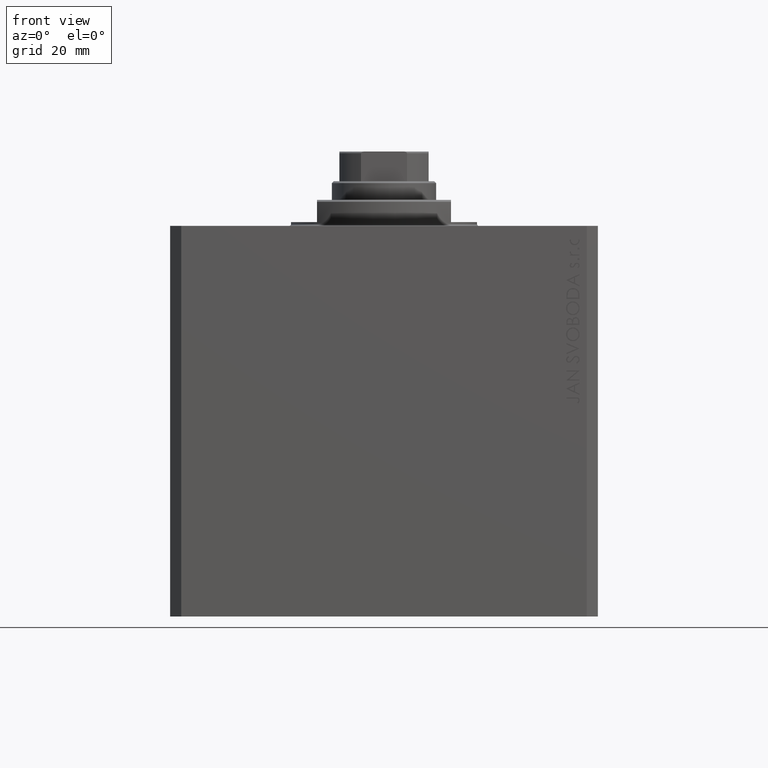
[diagram: clean part render]
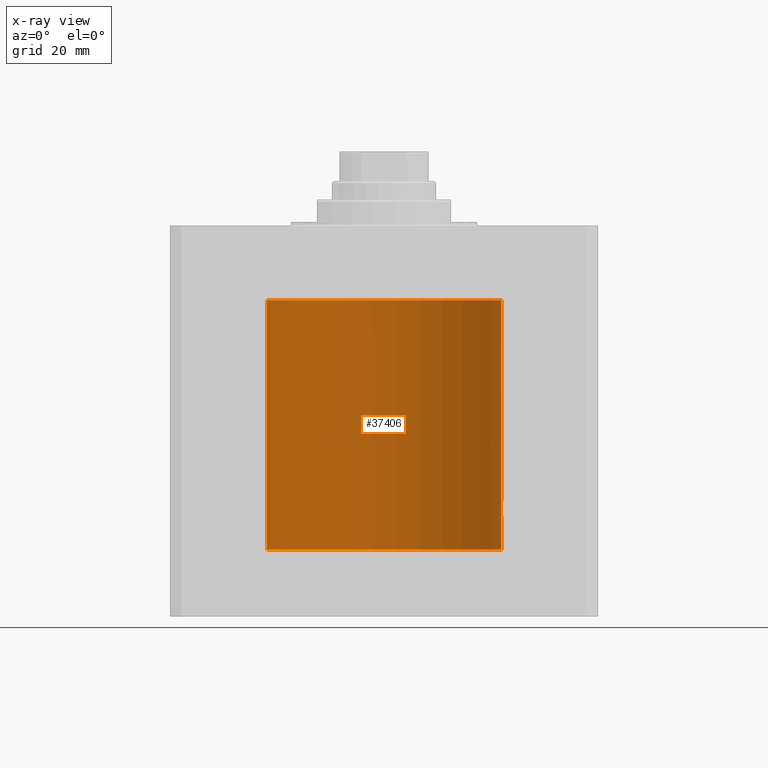
[diagram: x-ray — body ghosted, one internal face saturated and labeled with its STEP entity id]
A machine part, front view, then the same camera in x-ray: the body is ghosted and one INTERNAL B-rep face — a face not visible from any outside direction — is saturated and labeled: STEP entity #37406.
In plain terms, the highlighted cylindrical surface (partial cylindrical patch) has radius 31.5 mm, axis along (0, 0, 1).
Its self-contained STEP definition (entity closure, byte-faithful):
#517 = CARTESIAN_POINT ( 'NONE',  ( 0.000000000000000000, 0.000000000000000000, -87.09999999999999432 ) ) ;
#525 = CARTESIAN_POINT ( 'NONE',  ( 31.50000000000000000, -8.369814204394935255E-24, -74.00000000000000000 ) ) ;
#640 = CARTESIAN_POINT ( 'NONE',  ( -31.43990583976198039, 1.947383405442052906, -28.47504952007440693 ) ) ;
#749 = CARTESIAN_POINT ( 'NONE',  ( 31.43728213781475489, 1.986944500966173477, -75.73703800172732770 ) ) ;
#756 = ORIENTED_EDGE ( 'NONE', *, *, #39774, .T. ) ;
#1211 = LINE ( 'NONE', #26984, #30403 ) ;
#1736 = VERTEX_POINT ( 'NONE', #43524 ) ;
#2134 = CARTESIAN_POINT ( 'NONE',  ( 31.48773468680478160, 0.8872681233992109062, -77.79720623967027393 ) ) ;
#2368 = DIRECTION ( 'NONE',  ( 0.000000000000000000, 0.000000000000000000, 1.000000000000000000 ) ) ;
#2467 = CARTESIAN_POINT ( 'NONE',  ( 0.000000000000000000, 0.000000000000000000, -87.09999999999999432 ) ) ;
#3856 = CARTESIAN_POINT ( 'NONE',  ( 31.46404119587053927, 1.507594711990248637, -74.67917285243763104 ) ) ;
#3883 = CARTESIAN_POINT ( 'NONE',  ( -31.50000000000000000, 3.857637417314162689E-15, -20.00000000000000355 ) ) ;
#3993 = CARTESIAN_POINT ( 'NONE',  ( -31.50000000000000711, 0.1321804137546035152, -27.00000000000000711 ) ) ;
#4093 = CYLINDRICAL_SURFACE ( 'NONE', #28417, 31.50000000000000000 ) ;
#4199 = EDGE_CURVE ( 'NONE', #42066, #22732, #1211, .T. ) ;
#4335 = CARTESIAN_POINT ( 'NONE',  ( 31.48420706794360058, 1.003217712170301423, -74.26491493284291323 ) ) ;
#4559 = CARTESIAN_POINT ( 'NONE',  ( 31.43644381923627051, 2.000000000000389910, -76.00000000000000000 ) ) ;
#4910 = CARTESIAN_POINT ( 'NONE',  ( -31.44868630248347330, 1.797956860106296073, -29.88573445525094385 ) ) ;
#5390 = EDGE_CURVE ( 'NONE', #30366, #1736, #39332, .T. ) ;
#6045 = DIRECTION ( 'NONE',  ( 0.000000000000000000, 0.000000000000000000, 1.000000000000000000 ) ) ;
#6738 = ORIENTED_EDGE ( 'NONE', *, *, #5390, .T. ) ;
#7091 = CARTESIAN_POINT ( 'NONE',  ( -31.48773989768472603, 0.8870801819049330961, -27.20270307449468916 ) ) ;
#7148 = DIRECTION ( 'NONE',  ( 1.000000000000000000, 0.000000000000000000, 0.000000000000000000 ) ) ;
#7220 = DIRECTION ( 'NONE',  ( -0.000000000000000000, -0.000000000000000000, 1.000000000000000000 ) ) ;
#7996 = VERTEX_POINT ( 'NONE', #43059 ) ;
#8489 = CARTESIAN_POINT ( 'NONE',  ( -31.49364602877929897, 0.6441674297270015837, -30.89795957697708317 ) ) ;
#8541 = AXIS2_PLACEMENT_3D ( 'NONE', #2467, #6045, #19915 ) ;
#8727 = CARTESIAN_POINT ( 'NONE',  ( -31.43644085734510796, 2.000046555665927261, -29.12976806868835666 ) ) ;
#9536 = CARTESIAN_POINT ( 'NONE',  ( 31.50000000000000711, 0.1322106156816646727, -78.00000000000000000 ) ) ;
#10791 = CARTESIAN_POINT ( 'NONE',  ( 31.48776132734998967, 0.8863252928784766116, -74.20232887084928564 ) ) ;
#11177 = VECTOR ( 'NONE', #7220, 1000.000000000000000 ) ;
#11394 = CARTESIAN_POINT ( 'NONE',  ( -31.48424881603013148, 1.001951351791703804, -27.26414944111796856 ) ) ;
#11497 = DIRECTION ( 'NONE',  ( -0.000000000000000000, -0.000000000000000000, 1.000000000000000000 ) ) ;
#11868 = CARTESIAN_POINT ( 'NONE',  ( -31.45224836082999431, 1.735318303535943185, -30.00282216311122951 ) ) ;
#13810 = LINE ( 'NONE', #42923, #26791 ) ;
#14984 = CARTESIAN_POINT ( 'NONE',  ( -31.49600294595510164, 0.5178263803265128473, -27.06380656104273896 ) ) ;
#15034 = VERTEX_POINT ( 'NONE', #3883 ) ;
#15444 = CARTESIAN_POINT ( 'NONE',  ( -31.43644976744935349, 1.999906504661145057, -28.73831721771797731 ) ) ;
#15476 = EDGE_CURVE ( 'NONE', #38301, #15034, #13810, .T. ) ;
#15517 = VERTEX_POINT ( 'NONE', #28603 ) ;
#15679 = CARTESIAN_POINT ( 'NONE',  ( -31.47655123270016375, 1.220027114947935809, -30.59012812369856960 ) ) ;
#16009 = DIRECTION ( 'NONE',  ( 1.000000000000000000, 0.000000000000000000, 0.000000000000000000 ) ) ;
#16279 = B_SPLINE_CURVE_WITH_KNOTS ( 'NONE', 3,
 ( #36670, #3993, #33105, #14984, #44094, #7091, #11394, #25947, #40498, #22378, #33338, #640, #15444, #8727, #41185, #30686, #47259, #4910, #11868, #26187, #23535, #23304, #15679, #40740, #19494, #8489, #26419, #34033, #44564, #37842 ),
 .UNSPECIFIED., .F., .F.,
 ( 4, 2, 2, 2, 2, 2, 2, 2, 2, 2, 2, 2, 2, 2, 4 ),
 ( 2.625213444697534148E-19, 0.0003909052907595647391, 0.0007818105815191293698, 0.001172715872278693892, 0.001563621163038258956, 0.002345431744557394723, 0.003127242326076530923, 0.003518147616836098807, 0.003909052907595665823, 0.004299958198355233706, 0.004690863489114801589, 0.005081768779874370340, 0.005472674070633938223, 0.005863579361393506106, 0.006254484652153074857 ),
 .UNSPECIFIED. ) ;
#18194 = CARTESIAN_POINT ( 'NONE',  ( 31.44280827872263018, 1.897980201673372669, -75.35592026268044208 ) ) ;
#18444 = LINE ( 'NONE', #28470, #11177 ) ;
#18910 = CARTESIAN_POINT ( 'NONE',  ( 31.49364883223205425, 0.6440257487116619606, -74.10199450781240671 ) ) ;
#19494 = CARTESIAN_POINT ( 'NONE',  ( -31.48775605676681266, 0.8865158617371098337, -30.79757944476694576 ) ) ;
#19626 = EDGE_CURVE ( 'NONE', #38301, #7996, #16279, .T. ) ;
#19915 = DIRECTION ( 'NONE',  ( 1.000000000000000000, 0.000000000000000000, 0.000000000000000000 ) ) ;
#20231 = EDGE_CURVE ( 'NONE', #27163, #7996, #18444, .T. ) ;
#21208 = DIRECTION ( 'NONE',  ( -0.000000000000000000, -0.000000000000000000, 1.000000000000000000 ) ) ;
#22378 = CARTESIAN_POINT ( 'NONE',  ( -31.45993541206224720, 1.598922699014384996, -27.77056366933358689 ) ) ;
#22486 = CARTESIAN_POINT ( 'NONE',  ( 31.47656038302703507, 1.219789706799893736, -74.40969215575444196 ) ) ;
#22541 = CARTESIAN_POINT ( 'NONE',  ( 31.45992223434330981, 1.599182806012581226, -77.22911007148194074 ) ) ;
#22732 = VERTEX_POINT ( 'NONE', #37570 ) ;
#22765 = CARTESIAN_POINT ( 'NONE',  ( 31.47656968928225751, 1.219587704424721197, -77.59050234014505065 ) ) ;
#23304 = CARTESIAN_POINT ( 'NONE',  ( -31.47242045906136099, 1.321166510329244925, -30.50729961746650076 ) ) ;
#23535 = CARTESIAN_POINT ( 'NONE',  ( -31.46402885784291215, 1.507852291435628045, -30.32053570646255736 ) ) ;
#23617 = B_SPLINE_CURVE_WITH_KNOTS ( 'NONE', 3,
 ( #34836, #9536, #26115, #33727, #36837, #2134, #30153, #22765, #23637, #22541, #31253, #37079, #45822, #45596 ),
 .UNSPECIFIED., .F., .F.,
 ( 4, 2, 2, 2, 2, 2, 4 ),
 ( 2.056106459202125122E-18, 0.0003909946087814195124, 0.0007819892175628369649, 0.001172983826344254146, 0.001563978435125671761, 0.002345967652688536048, 0.003127956870251400769 ),
 .UNSPECIFIED. ) ;
#23637 = CARTESIAN_POINT ( 'NONE',  ( 31.47236118406704364, 1.322499398534437987, -77.50599456990816805 ) ) ;
#24736 = ORIENTED_EDGE ( 'NONE', *, *, #42856, .T. ) ;
#24829 = EDGE_LOOP ( 'NONE', ( #39456, #37725, #31744, #42899, #756, #6738, #24736, #35395, #35966 ) ) ;
#25295 = CARTESIAN_POINT ( 'NONE',  ( 0.000000000000000000, 0.000000000000000000, -20.00000000000000355 ) ) ;
#25592 = CARTESIAN_POINT ( 'NONE',  ( 31.44869941755756315, 1.797728078038228094, -75.11380515043099138 ) ) ;
#25947 = CARTESIAN_POINT ( 'NONE',  ( -31.47657892357849718, 1.219347894895174589, -27.40931637798618326 ) ) ;
#26115 = CARTESIAN_POINT ( 'NONE',  ( 31.49916827061299074, 0.2622045237009018592, -77.98701932221887034 ) ) ;
#26187 = CARTESIAN_POINT ( 'NONE',  ( -31.45990328919314649, 1.590516142808641842, -30.21952462249807425 ) ) ;
#26419 = CARTESIAN_POINT ( 'NONE',  ( -31.49597709302052451, 0.5194777340345942962, -30.93577488239865758 ) ) ;
#26626 = VECTOR ( 'NONE', #21208, 1000.000000000000000 ) ;
#26791 = VECTOR ( 'NONE', #39811, 1000.000000000000000 ) ;
#26984 = CARTESIAN_POINT ( 'NONE',  ( 31.50000000000000000, 0.000000000000000000, -87.09999999999999432 ) ) ;
#27163 = VERTEX_POINT ( 'NONE', #36215 ) ;
#27405 = B_SPLINE_CURVE_WITH_KNOTS ( 'NONE', 3,
 ( #4559, #43968, #749, #33215, #18194, #25592, #36785, #32737, #3856, #36544, #22486, #4335, #10791, #18910, #28926, #44205, #29169, #525 ),
 .UNSPECIFIED., .F., .F.,
 ( 4, 2, 2, 2, 2, 2, 2, 2, 4 ),
 ( 0.003127956870251400769, 0.003518772842989208258, 0.003909588815727015748, 0.004300404788464823672, 0.004691220761202631595, 0.005082036733940438651, 0.005472852706678246575, 0.005863668679416053631, 0.006254484652153861554 ),
 .UNSPECIFIED. ) ;
#28417 = AXIS2_PLACEMENT_3D ( 'NONE', #517, #11497, #16009 ) ;
#28470 = CARTESIAN_POINT ( 'NONE',  ( -31.50000000000000000, 3.857637417314162689E-15, -87.09999999999999432 ) ) ;
#28603 = CARTESIAN_POINT ( 'NONE',  ( 31.43644381923627051, 2.000000000000389910, -76.00000000000000000 ) ) ;
#28926 = CARTESIAN_POINT ( 'NONE',  ( 31.49597888575898708, 0.5193621964009169645, -74.06419610029345790 ) ) ;
#29169 = CARTESIAN_POINT ( 'NONE',  ( 31.50000000000000711, 0.1305169792915977789, -73.99999999999998579 ) ) ;
#30153 = CARTESIAN_POINT ( 'NONE',  ( 31.48424227690098931, 1.002158581476553012, -77.73573328606775590 ) ) ;
#30299 = EDGE_CURVE ( 'NONE', #22732, #15517, #23617, .T. ) ;
#30366 = VERTEX_POINT ( 'NONE', #46532 ) ;
#30403 = VECTOR ( 'NONE', #41764, 1000.000000000000000 ) ;
#30686 = CARTESIAN_POINT ( 'NONE',  ( -31.44046365243112362, 1.935949445030092253, -29.51885062223535172 ) ) ;
#31253 = CARTESIAN_POINT ( 'NONE',  ( 31.45161214644909364, 1.748160858796787398, -77.00590244996604383 ) ) ;
#31403 = CIRCLE ( 'NONE', #8541, 31.50000000000000000 ) ;
#31431 = CARTESIAN_POINT ( 'NONE',  ( 31.50000000000000000, 0.000000000000000000, -87.09999999999999432 ) ) ;
#31698 = CARTESIAN_POINT ( 'NONE',  ( 31.50000000000000000, 0.000000000000000000, -87.09999999999999432 ) ) ;
#31744 = ORIENTED_EDGE ( 'NONE', *, *, #4199, .T. ) ;
#32737 = CARTESIAN_POINT ( 'NONE',  ( 31.45991621267056004, 1.590260824275570029, -74.78014573967448086 ) ) ;
#33105 = CARTESIAN_POINT ( 'NONE',  ( -31.49916865039979186, 0.2621451228717642246, -27.01297480444316079 ) ) ;
#33215 = CARTESIAN_POINT ( 'NONE',  ( 31.44047330683569186, 1.935793094480600107, -75.48057478130489528 ) ) ;
#33338 = CARTESIAN_POINT ( 'NONE',  ( -31.45162599326494757, 1.747914105633341375, -27.99368423768024527 ) ) ;
#33727 = CARTESIAN_POINT ( 'NONE',  ( 31.49600115550921231, 0.5179422407981758569, -77.93616446468720937 ) ) ;
#34033 = CARTESIAN_POINT ( 'NONE',  ( -31.49916171907896256, 0.2631371420809984762, -30.98691729972353315 ) ) ;
#34540 = EDGE_CURVE ( 'NONE', #42066, #27163, #31403, .T. ) ;
#34836 = CARTESIAN_POINT ( 'NONE',  ( 31.50000000000000000, 2.115822464172388752E-15, -78.00000000000000000 ) ) ;
#35395 = ORIENTED_EDGE ( 'NONE', *, *, #15476, .F. ) ;
#35450 = AXIS2_PLACEMENT_3D ( 'NONE', #25295, #2368, #7148 ) ;
#35966 = ORIENTED_EDGE ( 'NONE', *, *, #19626, .T. ) ;
#36215 = CARTESIAN_POINT ( 'NONE',  ( -31.50000000000000000, 3.857637417314162689E-15, -87.09999999999999432 ) ) ;
#36544 = CARTESIAN_POINT ( 'NONE',  ( 31.47243113015943550, 1.320912165297396079, -74.49247977760566641 ) ) ;
#36670 = CARTESIAN_POINT ( 'NONE',  ( -31.50000000000000000, 1.397936845058764387E-14, -27.00000000000000000 ) ) ;
#36777 = FACE_OUTER_BOUND ( 'NONE', #24829, .T. ) ;
#36785 = CARTESIAN_POINT ( 'NONE',  ( 31.45226167581968113, 1.735077252816683346, -74.99676481699547992 ) ) ;
#36837 = CARTESIAN_POINT ( 'NONE',  ( 31.49362851683618914, 0.6450141649083153128, -77.89767007611372662 ) ) ;
#37079 = CARTESIAN_POINT ( 'NONE',  ( 31.43989559156923264, 1.947546710638703438, -76.52437385228235200 ) ) ;
#37406 = ADVANCED_FACE ( 'NONE', ( #36777 ), #4093, .F. ) ;
#37570 = CARTESIAN_POINT ( 'NONE',  ( 31.50000000000000000, 2.115822464172388752E-15, -78.00000000000000000 ) ) ;
#37725 = ORIENTED_EDGE ( 'NONE', *, *, #34540, .F. ) ;
#37842 = CARTESIAN_POINT ( 'NONE',  ( -31.50000000000000000, 3.857637408943224358E-15, -30.99999999999999645 ) ) ;
#38301 = VERTEX_POINT ( 'NONE', #44264 ) ;
#39332 = LINE ( 'NONE', #31698, #26626 ) ;
#39456 = ORIENTED_EDGE ( 'NONE', *, *, #20231, .F. ) ;
#39774 = EDGE_CURVE ( 'NONE', #15517, #30366, #27405, .T. ) ;
#39811 = DIRECTION ( 'NONE',  ( -0.000000000000000000, -0.000000000000000000, 1.000000000000000000 ) ) ;
#40498 = CARTESIAN_POINT ( 'NONE',  ( -31.47237164446477209, 1.322250186170389252, -27.49378908604443694 ) ) ;
#40740 = CARTESIAN_POINT ( 'NONE',  ( -31.48420048909751756, 1.003425746290474763, -30.73496696875380607 ) ) ;
#40786 = CIRCLE ( 'NONE', #35450, 31.50000000000000000 ) ;
#41185 = CARTESIAN_POINT ( 'NONE',  ( -31.43727648790974172, 1.987033456253953112, -29.26230567213424294 ) ) ;
#41764 = DIRECTION ( 'NONE',  ( -0.000000000000000000, -0.000000000000000000, 1.000000000000000000 ) ) ;
#42066 = VERTEX_POINT ( 'NONE', #31431 ) ;
#42856 = EDGE_CURVE ( 'NONE', #1736, #15034, #40786, .T. ) ;
#42899 = ORIENTED_EDGE ( 'NONE', *, *, #30299, .T. ) ;
#42923 = CARTESIAN_POINT ( 'NONE',  ( -31.50000000000000000, 3.857637417314162689E-15, -87.09999999999999432 ) ) ;
#43059 = CARTESIAN_POINT ( 'NONE',  ( -31.50000000000000000, 3.857637408943224358E-15, -30.99999999999999645 ) ) ;
#43524 = CARTESIAN_POINT ( 'NONE',  ( 31.50000000000000000, 0.000000000000000000, -20.00000000000000355 ) ) ;
#43968 = CARTESIAN_POINT ( 'NONE',  ( 31.43644381923627051, 2.000000000000389466, -75.86954368634472701 ) ) ;
#44094 = CARTESIAN_POINT ( 'NONE',  ( -31.49363138352033431, 0.6448700584747274478, -27.10228292539639128 ) ) ;
#44205 = CARTESIAN_POINT ( 'NONE',  ( 31.49916210907646175, 0.2630769646869197675, -74.01307666483570813 ) ) ;
#44264 = CARTESIAN_POINT ( 'NONE',  ( -31.50000000000000000, 1.397936845058764387E-14, -27.00000000000000000 ) ) ;
#44564 = CARTESIAN_POINT ( 'NONE',  ( -31.50000000000000000, 0.1305468079557571826, -31.00000000000000000 ) ) ;
#45596 = CARTESIAN_POINT ( 'NONE',  ( 31.43644381923627051, 2.000000000000389910, -76.00000000000000000 ) ) ;
#45822 = CARTESIAN_POINT ( 'NONE',  ( 31.43644381923627051, 2.000000000000390354, -76.26103188650854747 ) ) ;
#46532 = CARTESIAN_POINT ( 'NONE',  ( 31.50000000000000000, -8.369814204394935255E-24, -74.00000000000000000 ) ) ;
#47259 = CARTESIAN_POINT ( 'NONE',  ( -31.44279716593210949, 1.898163692853223061, -29.64354408641193928 ) ) ;